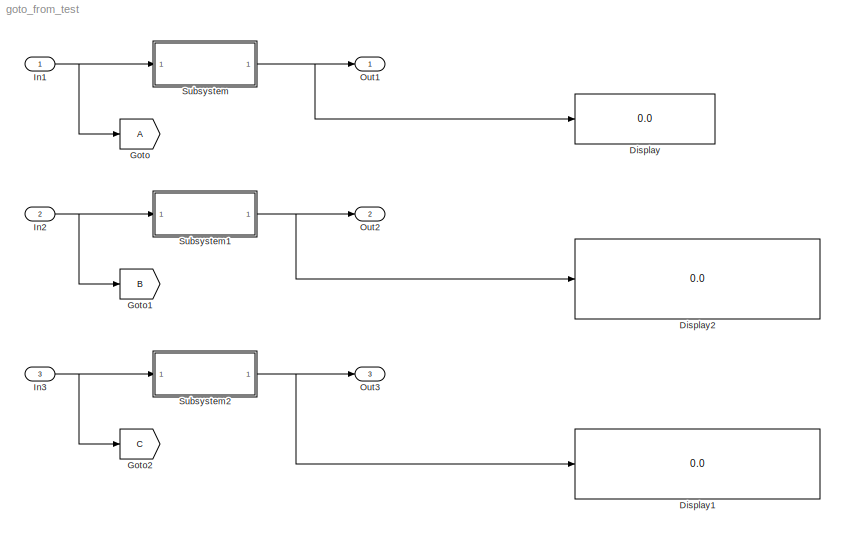
MODEL goto_from_test
KIND model
BLOCK [Display] Display
  Decimation = 1
  Ports = [1]
  SID = 25
BLOCK [Display] Display1
  Decimation = 1
  Ports = [1]
  SID = 26
BLOCK [Display] Display2
  Decimation = 1
  Ports = [1]
  SID = 27
BLOCK [Goto] Goto
  SID = 7
  TagVisibility = global
BLOCK [Goto] Goto1
  GotoTag = B
  SID = 10
  TagVisibility = global
BLOCK [Goto] Goto2
  GotoTag = C
  SID = 18
  TagVisibility = global
BLOCK [Inport] In1
  IconDisplay = Port number
  OutDataTypeStr = double
  SID = 1
BLOCK [Inport] In2
  IconDisplay = Port number
  OutDataTypeStr = int32
  Port = 2
  PortDimensions = 2
  SID = 9
BLOCK [Inport] In3
  IconDisplay = Port number
  OutDataTypeStr = boolean
  Port = 3
  PortDimensions = [2 3]
  SID = 17
BLOCK [Outport] Out1
  IconDisplay = Port number
  SID = 2
BLOCK [Outport] Out2
  IconDisplay = Port number
  Port = 2
  SID = 16
BLOCK [Outport] Out3
  IconDisplay = Port number
  Port = 3
  SID = 24
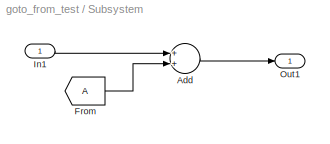
BLOCK [SubSystem] Subsystem
  Ports = [1, 1]
  RequestExecContextInheritance = off
  SID = 3
  Variant = off
BLOCK [Sum] Subsystem/Add
  InputSameDT = off
  OutDataTypeStr = Inherit: Inherit via internal rule
  Ports = [2, 1]
  SID = 8
  SaturateOnIntegerOverflow = off
BLOCK [From] Subsystem/From
  SID = 6
  TagVisibility = global
BLOCK [Inport] Subsystem/In1
  IconDisplay = Port number
  SID = 4
BLOCK [Outport] Subsystem/Out1
  IconDisplay = Port number
  SID = 5
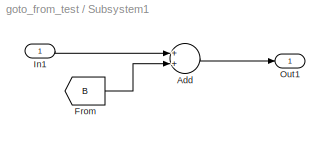
BLOCK [SubSystem] Subsystem1
  Ports = [1, 1]
  RequestExecContextInheritance = off
  SID = 11
  Variant = off
BLOCK [Sum] Subsystem1/Add
  InputSameDT = off
  OutDataTypeStr = Inherit: Inherit via internal rule
  Ports = [2, 1]
  SID = 13
  SaturateOnIntegerOverflow = off
BLOCK [From] Subsystem1/From
  GotoTag = B
  SID = 14
  TagVisibility = global
BLOCK [Inport] Subsystem1/In1
  IconDisplay = Port number
  SID = 12
BLOCK [Outport] Subsystem1/Out1
  IconDisplay = Port number
  SID = 15
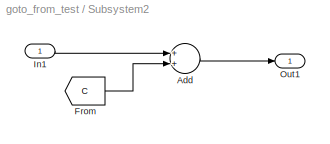
BLOCK [SubSystem] Subsystem2
  Ports = [1, 1]
  RequestExecContextInheritance = off
  SID = 19
  Variant = off
BLOCK [Sum] Subsystem2/Add
  InputSameDT = off
  OutDataTypeStr = Inherit: Inherit via internal rule
  Ports = [2, 1]
  SID = 21
  SaturateOnIntegerOverflow = off
BLOCK [From] Subsystem2/From
  GotoTag = C
  SID = 22
  TagVisibility = global
BLOCK [Inport] Subsystem2/In1
  IconDisplay = Port number
  SID = 20
BLOCK [Outport] Subsystem2/Out1
  IconDisplay = Port number
  SID = 23
NET In1:1 -> Goto:1, Subsystem:1
NET In2:1 -> Goto1:1, Subsystem1:1
NET In3:1 -> Goto2:1, Subsystem2:1
LINE Subsystem/Add:1 -> Subsystem/Out1:1
LINE Subsystem/From:1 -> Subsystem/Add:2
LINE Subsystem/In1:1 -> Subsystem/Add:1
LINE Subsystem1/Add:1 -> Subsystem1/Out1:1
LINE Subsystem1/From:1 -> Subsystem1/Add:2
LINE Subsystem1/In1:1 -> Subsystem1/Add:1
NET Subsystem1:1 -> Display2:1, Out2:1
LINE Subsystem2/Add:1 -> Subsystem2/Out1:1
LINE Subsystem2/From:1 -> Subsystem2/Add:2
LINE Subsystem2/In1:1 -> Subsystem2/Add:1
NET Subsystem2:1 -> Display1:1, Out3:1
NET Subsystem:1 -> Display:1, Out1:1
note: NET lines group one-source signal fan-out (src -> all destinations, sorted); 1:1 wires keep LINE
